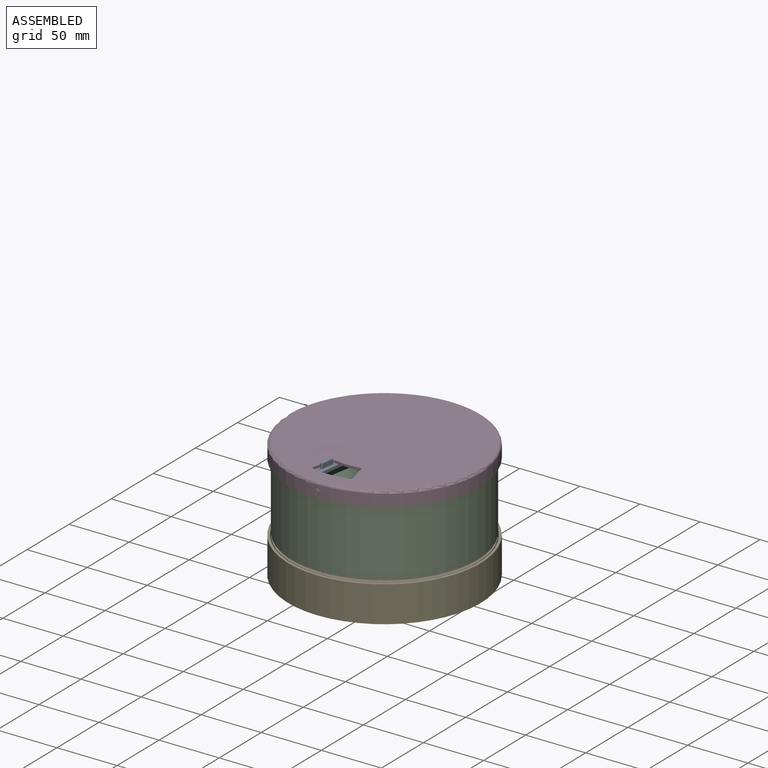
[diagram: assembled view]
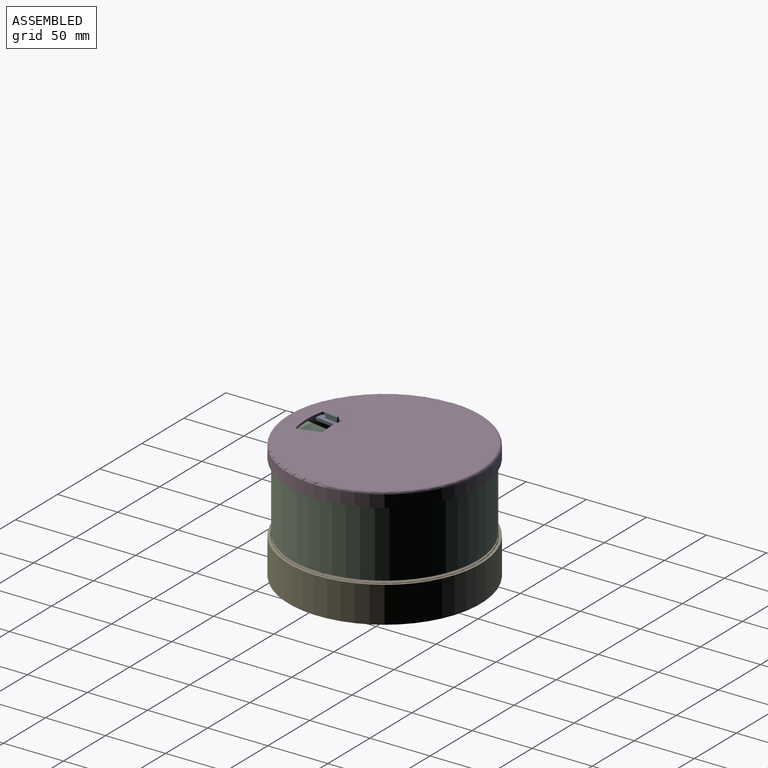
[diagram: assembled view, second angle]
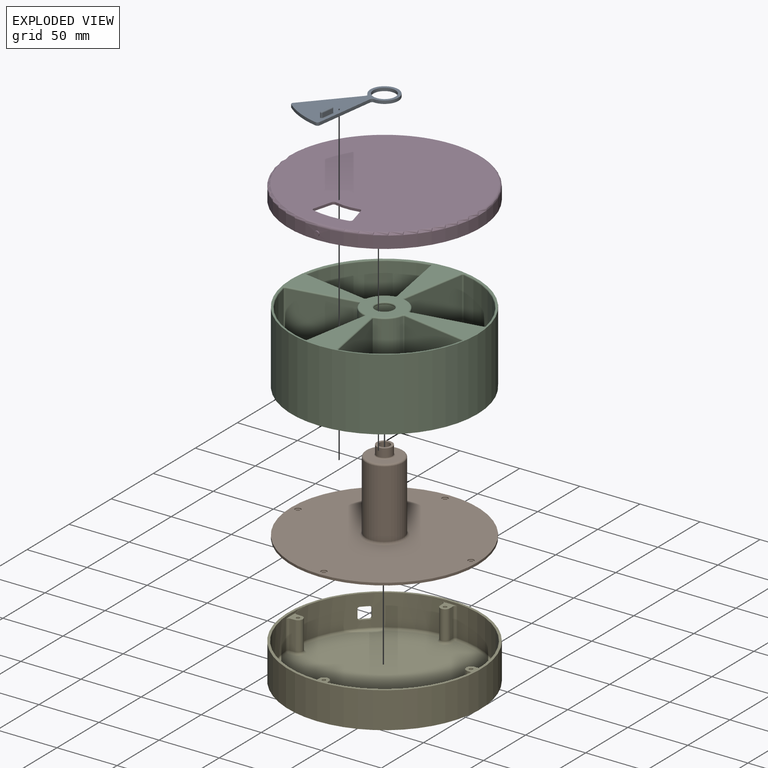
[diagram: exploded view]
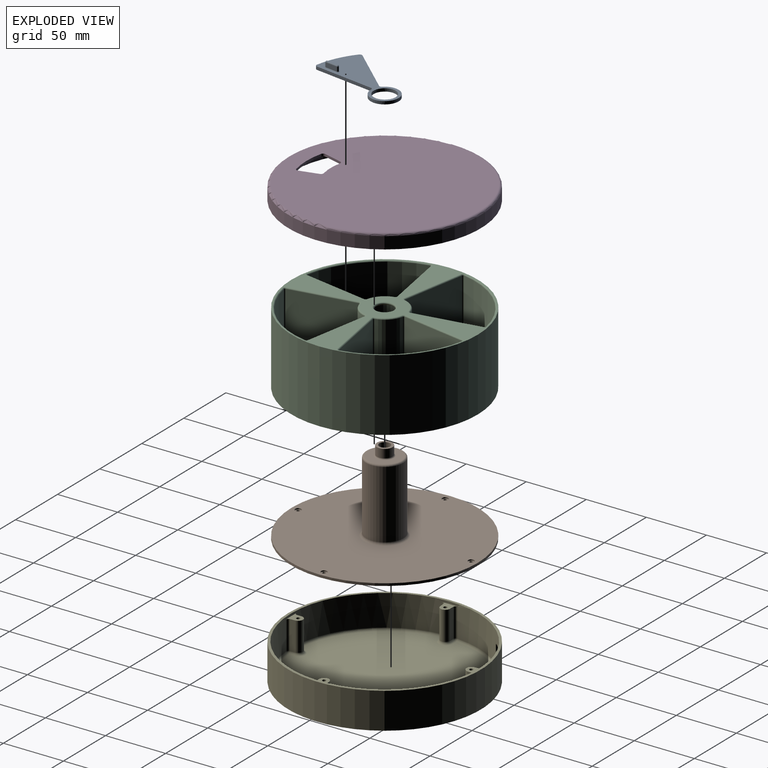
[diagram: exploded view, second angle]
ASSEMBLY  parts=5 mates=4
PART A: 22 faces, bbox 77.7x7.5x36 mm
  f0: torus R=1.5mm, axis (0,1,0), area 2.9mm2, adj f7,f14,f19,f20
  f1: sphere r=1mm, area 3.1mm2, adj f14,f18
  f2: cylinder r=1mm len=3.5mm, axis (0,-1,0), area 11mm2, adj f15,f16,f17,f21
  f3: cylinder r=9.15mm len=18.3mm, axis (0,-1,0), area 143.7mm2, adj f7,f8
  f4: cylinder r=2mm len=2.5mm, axis (0,-1,0), area 7.4mm2, adj f5,f7,f8,f13
  f5: cylinder r=11.65mm len=23.3mm, axis (0,-1,0), area 160.6mm2, adj f4,f7,f8,f12
  f6: cylinder r=2mm len=2.52mm, axis (0,-1,0), area 8.1mm2, adj f7,f8,f10,f11
  f7: plane 77.65x36.02mm, normal (0,1,0), area 1290.5mm2, adj f0,f3,f4,f5,f6,f9,f10,f11
  f8: plane 77.65x36.02mm, normal (0,-1,0), area 1327.6mm2, adj f3,f4,f5,f6,f9,f10,f11,f12
  f9: cylinder r=2mm len=2.52mm, axis (0,-1,0), area 8.1mm2, adj f7,f8,f10,f13
  f10: cylinder r=66mm len=33.02mm, axis (0,-1,0), area 83.4mm2, adj f6,f7,f8,f9
  f11: plane 48.14x14.72mm, normal (-0.29,0,-0.96), area 125.9mm2, adj f6,f7,f8,f12
  f12: cylinder r=2mm len=2.5mm, axis (0,-1,0), area 7.4mm2, adj f5,f7,f8,f11
  f13: plane 48.14x14.72mm, normal (-0.29,0,0.96), area 125.9mm2, adj f4,f7,f8,f9
  f14: cylinder r=1mm len=3.5mm, axis (0,-1,0), area 11mm2, adj f0,f1,f15,f16
  f15: plane 9.56x3.5mm, normal (0.29,0,0.96), area 35mm2, adj f2,f14,f18,f19
  f16: plane 9.56x3.5mm, normal (-0.29,0,-0.96), area 35mm2, adj f2,f14,f18,f20
  f17: sphere r=1mm, area 3.1mm2, adj f2,f18
  f18: cylinder r=1mm len=10.15mm, axis (-0.96,0,0.29), area 31.4mm2, adj f1,f15,f16,f17
  f19: cylinder r=0.5mm len=9.71mm, axis (0.96,0,-0.29), area 7.9mm2, adj f0,f7,f15,f21
  f20: cylinder r=0.5mm len=9.71mm, axis (-0.96,0,0.29), area 7.9mm2, adj f0,f7,f16,f21
  f21: torus R=1.5mm, axis (0,1,0), area 2.9mm2, adj f2,f7,f19,f20
PART B: 28 faces, bbox 155x70x155 mm
  f0: torus R=17.5mm, axis (0,1,0), area 320.3mm2, adj f16,f19
  f1: cylinder r=1.5mm len=3mm, axis (0,1,0), area 9.4mm2, adj f20,f27
  f2: cylinder r=1.5mm len=3mm, axis (0,1,0), area 9.4mm2, adj f20,f26
  f3: cylinder r=1.5mm len=3mm, axis (0,1,0), area 9.4mm2, adj f20,f25
  f4: cylinder r=2.5mm len=5mm, axis (0,1,0), area 15.7mm2, adj f19,f27
  f5: cylinder r=2.5mm len=5mm, axis (0,1,0), area 15.7mm2, adj f19,f26
  f6: cylinder r=2.5mm len=5mm, axis (0,1,0), area 15.7mm2, adj f19,f25
  f7: cylinder r=1.5mm len=3mm, axis (0,1,0), area 9.4mm2, adj f20,f24
  f8: cylinder r=2.5mm len=5mm, axis (0,1,0), area 15.7mm2, adj f19,f24
  f9: torus R=15.5mm, axis (0,1,0), area 280.8mm2, adj f17,f20
  f10: torus R=12mm, axis (0,-1,0), area 191.8mm2, adj f17,f23
  f11: torus R=5.5mm, axis (0,-1,0), area 48mm2, adj f12,f23
  f12: cylinder r=4.5mm len=9mm, axis (0,-1,0), area 254.5mm2, adj f11,f22
  f13: cylinder r=6.5mm len=13mm, axis (0,-1,0), area 285.9mm2, adj f14,f22
  f14: torus R=7.5mm, axis (0,-1,0), area 67.7mm2, adj f13,f21
  f15: torus R=14mm, axis (0,-1,0), area 221.4mm2, adj f16,f21
  f16: cylinder r=15.5mm len=56.5mm, axis (0,-1,0), area 5502.5mm2, adj f0,f15
  f17: cylinder r=13.5mm len=56.5mm, axis (0,-1,0), area 4792.5mm2, adj f9,f10
  f18: cylinder r=77.5mm len=155mm, axis (0,-1,0), area 973.9mm2, adj f19,f20
  f19: plane 155x155mm, normal (0,1,0), area 17828.5mm2, adj f0,f4,f5,f6,f8,f18
  f20: plane 155x155mm, normal (0,-1,0), area 18086.1mm2, adj f1,f2,f3,f7,f9,f18
  f21: plane 28x28mm, normal (0,1,0), area 439mm2, adj f14,f15
  f22: plane 13x13mm, normal (0,1,0), area 69.1mm2, adj f12,f13
  f23: plane 24x24mm, normal (0,-1,0), area 357.4mm2, adj f10,f11
  f24: plane 5x5mm, normal (0,1,0), area 12.6mm2, adj f7,f8
  f25: plane 5x5mm, normal (0,1,0), area 12.6mm2, adj f3,f6
  f26: plane 5x5mm, normal (0,1,0), area 12.6mm2, adj f2,f5
  f27: plane 5x5mm, normal (0,1,0), area 12.6mm2, adj f1,f4
PART C: 108 faces, bbox 164.2x60x164.2 mm
  f0: torus R=8.5mm, axis (0,-1,0), area 155.2mm2, adj f13,f27
  f1: torus R=14.5mm, axis (0,-1,0), area 311.4mm2, adj f11,f27
  f2: torus R=18.5mm, axis (0,1,0), area 340mm2, adj f11,f26
  f3: torus R=2mm, axis (0,1,0), area 3.3mm2, adj f13,f102,f103,f107
  f4: cylinder r=1mm len=56mm, axis (0,-1,0), area 88.7mm2, adj f14,f28,f92,f101
  f5: cylinder r=1mm len=56mm, axis (0,-1,0), area 88.7mm2, adj f23,f29,f82,f88
  f6: torus R=2mm, axis (0,1,0), area 3.3mm2, adj f13,f75,f80,f84
  f7: cylinder r=1mm len=56mm, axis (0,-1,0), area 85.1mm2, adj f22,f31,f64,f69
  f8: torus R=2mm, axis (0,1,0), area 3.4mm2, adj f13,f61,f62,f68
  f9: torus R=2mm, axis (0,1,0), area 3.4mm2, adj f13,f50,f51,f53
  f10: cylinder r=1mm len=56mm, axis (0,-1,0), area 85.1mm2, adj f19,f35,f37,f44
  f11: cylinder r=16.5mm len=54mm, axis (0,-1,0), area 5598.3mm2, adj f1,f2
  f12: cylinder r=77.5mm len=155mm, axis (0,-1,0), area 29216.8mm2, adj f13,f26
  f13: plane 155x155mm, normal (0,1,0), area 4632.3mm2, adj f0,f3,f6,f8,f9,f12,f43,f44
  f14: cylinder r=75.5mm len=60.06mm, axis (0,-1,0), area 5052mm2, adj f4,f90,f93,f97
  f15: cylinder r=75.5mm len=60.06mm, axis (0,-1,0), area 5052mm2, adj f40,f49,f50,f53
  f16: plane 68.82x68.82mm, normal (0,1,0), area 3048.2mm2, adj f90,f94,f95,f96
  f17: plane 68.82x68.82mm, normal (0,1,0), area 3048.2mm2, adj f36,f39,f40,f41
  f18: cylinder r=18.5mm len=56mm, axis (0,-1,0), area 1159.4mm2, adj f95,f103,f104,f107
  f19: cylinder r=18.5mm len=56mm, axis (0,-1,0), area 1159.4mm2, adj f10,f36,f42,f43
  f20: cylinder r=75.5mm len=60.06mm, axis (0,-1,0), area 5052mm2, adj f54,f57,f61,f62
  f21: plane 68.82x68.82mm, normal (0,1,0), area 3048.2mm2, adj f54,f58,f59,f60
  f22: cylinder r=18.5mm len=56mm, axis (0,-1,0), area 1159.4mm2, adj f7,f59,f67,f71
  f23: cylinder r=75.5mm len=60.06mm, axis (0,-1,0), area 5052mm2, adj f5,f77,f85,f89
  f24: plane 68.82x68.82mm, normal (0,1,0), area 3048.2mm2, adj f72,f76,f77,f78
  f25: cylinder r=18.5mm len=56mm, axis (0,-1,0), area 1159.4mm2, adj f72,f75,f79,f80
  f26: plane 155x155mm, normal (0,-1,0), area 17794mm2, adj f2,f12
  f27: plane 29x29mm, normal (0,-1,0), area 433.5mm2, adj f0,f1
  f28: plane 56x54.18mm, normal (-0.98,0,0.17), area 3081.1mm2, adj f4,f96,f104,f105
  f29: plane 56x54.18mm, normal (0.98,0,0.17), area 3081.1mm2, adj f5,f78,f79,f86
  f30: plane 56x54.18mm, normal (-0.17,0,-0.98), area 3081.1mm2, adj f75,f76,f84,f85
  f31: plane 56x54.18mm, normal (-0.17,0,0.98), area 3081.1mm2, adj f7,f57,f58,f66
  f32: plane 56x54.18mm, normal (-0.98,0,-0.17), area 3081.1mm2, adj f41,f42,f50,f51
  f33: plane 56x54.18mm, normal (0.98,0,-0.17), area 3081.1mm2, adj f60,f61,f67,f68
  f34: plane 56x54.18mm, normal (0.17,0,-0.98), area 3081.1mm2, adj f93,f94,f102,f103
  f35: plane 56x54.18mm, normal (0.17,0,0.98), area 3081.1mm2, adj f10,f39,f48,f49
  f36: torus R=19.5mm, axis (0,1,0), area 33.2mm2, adj f17,f19,f37,f38
  f37: sphere r=1mm, area 1.5mm2, adj f10,f36,f39
  f38: sphere r=1mm, area 1.5mm2, adj f36,f41,f42
  f39: cylinder r=1mm len=54.36mm, axis (0.98,0,-0.17), area 86.4mm2, adj f17,f35,f37,f45
  f40: torus R=74.5mm, axis (0,1,0), area 141mm2, adj f15,f17,f45,f46
  f41: cylinder r=1mm len=54.36mm, axis (-0.17,0,0.98), area 86.4mm2, adj f17,f32,f38,f46
  f42: cylinder r=1mm len=56mm, axis (0,-1,0), area 85.1mm2, adj f19,f32,f38,f47
  f43: torus R=17.5mm, axis (0,1,0), area 31.9mm2, adj f13,f19,f44,f47
  f44: torus R=2mm, axis (0,1,0), area 3.3mm2, adj f10,f13,f43,f48
  f45: sphere r=1mm, area 1.6mm2, adj f39,f40,f49
  f46: sphere r=1mm, area 1.6mm2, adj f40,f41,f50
  f47: torus R=2mm, axis (0,1,0), area 3.3mm2, adj f13,f42,f43,f51
  f48: cylinder r=1mm len=54.36mm, axis (-0.98,0,0.17), area 86.4mm2, adj f13,f35,f44,f52
  f49: cylinder r=1mm len=56mm, axis (0,-1,0), area 88.7mm2, adj f15,f35,f45,f52
  f50: cylinder r=1mm len=56mm, axis (0,-1,0), area 88.7mm2, adj f9,f15,f32,f46
  f51: cylinder r=1mm len=54.36mm, axis (0.17,0,-0.98), area 86.4mm2, adj f9,f13,f32,f47
  f52: torus R=2mm, axis (0,1,0), area 3.4mm2, adj f13,f48,f49,f53
  f53: torus R=76.5mm, axis (0,1,0), area 142.4mm2, adj f9,f13,f15,f52
  f54: torus R=74.5mm, axis (0,1,0), area 141mm2, adj f20,f21,f55,f56
  f55: sphere r=1mm, area 1.6mm2, adj f54,f57,f58
  f56: sphere r=1mm, area 1.6mm2, adj f54,f60,f61
  f57: cylinder r=1mm len=56mm, axis (0,-1,0), area 88.7mm2, adj f20,f31,f55,f63
  f58: cylinder r=1mm len=54.36mm, axis (0.98,0,0.17), area 86.4mm2, adj f21,f31,f55,f64
  f59: torus R=19.5mm, axis (0,1,0), area 33.2mm2, adj f21,f22,f64,f65
  f60: cylinder r=1mm len=54.36mm, axis (-0.17,0,-0.98), area 86.4mm2, adj f21,f33,f56,f65
  f61: cylinder r=1mm len=56mm, axis (0,-1,0), area 88.7mm2, adj f8,f20,f33,f56
  f62: torus R=76.5mm, axis (0,1,0), area 142.4mm2, adj f8,f13,f20,f63
  f63: torus R=2mm, axis (0,1,0), area 3.4mm2, adj f13,f57,f62,f66
  f64: sphere r=1mm, area 1.5mm2, adj f7,f58,f59
  f65: sphere r=1mm, area 1.5mm2, adj f59,f60,f67
  f66: cylinder r=1mm len=54.36mm, axis (-0.98,0,-0.17), area 86.4mm2, adj f13,f31,f63,f69
  f67: cylinder r=1mm len=56mm, axis (0,-1,0), area 85.1mm2, adj f22,f33,f65,f70
  f68: cylinder r=1mm len=54.36mm, axis (0.17,0,0.98), area 86.4mm2, adj f8,f13,f33,f70
  f69: torus R=2mm, axis (0,1,0), area 3.3mm2, adj f7,f13,f66,f71
  f70: torus R=2mm, axis (0,1,0), area 3.3mm2, adj f13,f67,f68,f71
  f71: torus R=17.5mm, axis (0,1,0), area 31.9mm2, adj f13,f22,f69,f70
  f72: torus R=19.5mm, axis (0,1,0), area 33.2mm2, adj f24,f25,f73,f74
  f73: sphere r=1mm, area 1.5mm2, adj f72,f75,f76
  f74: sphere r=1mm, area 1.5mm2, adj f72,f78,f79
  f75: cylinder r=1mm len=56mm, axis (0,-1,0), area 85.1mm2, adj f6,f25,f30,f73
  f76: cylinder r=1mm len=54.36mm, axis (-0.98,0,0.17), area 86.4mm2, adj f24,f30,f73,f81
  f77: torus R=74.5mm, axis (0,1,0), area 141mm2, adj f23,f24,f81,f82
  f78: cylinder r=1mm len=54.36mm, axis (0.17,0,-0.98), area 86.4mm2, adj f24,f29,f74,f82
  f79: cylinder r=1mm len=56mm, axis (0,-1,0), area 85.1mm2, adj f25,f29,f74,f83
  f80: torus R=17.5mm, axis (0,1,0), area 31.9mm2, adj f6,f13,f25,f83
  f81: sphere r=1mm, area 1.6mm2, adj f76,f77,f85
  f82: sphere r=1mm, area 1.6mm2, adj f5,f77,f78
  f83: torus R=2mm, axis (0,1,0), area 3.3mm2, adj f13,f79,f80,f86
  f84: cylinder r=1mm len=54.36mm, axis (0.98,0,-0.17), area 86.4mm2, adj f6,f13,f30,f87
  f85: cylinder r=1mm len=56mm, axis (0,-1,0), area 88.7mm2, adj f23,f30,f81,f87
  f86: cylinder r=1mm len=54.36mm, axis (-0.17,0,0.98), area 86.4mm2, adj f13,f29,f83,f88
  f87: torus R=2mm, axis (0,1,0), area 3.4mm2, adj f13,f84,f85,f89
  f88: torus R=2mm, axis (0,1,0), area 3.4mm2, adj f5,f13,f86,f89
  f89: torus R=76.5mm, axis (0,1,0), area 142.4mm2, adj f13,f23,f87,f88
  f90: torus R=74.5mm, axis (0,1,0), area 141mm2, adj f14,f16,f91,f92
  f91: sphere r=1mm, area 1.6mm2, adj f90,f93,f94
  f92: sphere r=1mm, area 1.6mm2, adj f4,f90,f96
  f93: cylinder r=1mm len=56mm, axis (0,-1,0), area 88.7mm2, adj f14,f34,f91,f98
  f94: cylinder r=1mm len=54.36mm, axis (-0.98,0,-0.17), area 86.4mm2, adj f16,f34,f91,f99
  f95: torus R=19.5mm, axis (0,1,0), area 33.2mm2, adj f16,f18,f99,f100
  f96: cylinder r=1mm len=54.36mm, axis (0.17,0,0.98), area 86.4mm2, adj f16,f28,f92,f100
  f97: torus R=76.5mm, axis (0,1,0), area 142.4mm2, adj f13,f14,f98,f101
  f98: torus R=2mm, axis (0,1,0), area 3.4mm2, adj f13,f93,f97,f102
  f99: sphere r=1mm, area 1.5mm2, adj f94,f95,f103
  f100: sphere r=1mm, area 1.5mm2, adj f95,f96,f104
  f101: torus R=2mm, axis (0,1,0), area 3.4mm2, adj f4,f13,f97,f105
  f102: cylinder r=1mm len=54.36mm, axis (0.98,0,0.17), area 86.4mm2, adj f3,f13,f34,f98
  f103: cylinder r=1mm len=56mm, axis (0,-1,0), area 85.1mm2, adj f3,f18,f34,f99
  f104: cylinder r=1mm len=56mm, axis (0,-1,0), area 85.1mm2, adj f18,f28,f100,f106
  f105: cylinder r=1mm len=54.36mm, axis (-0.17,0,-0.98), area 86.4mm2, adj f13,f28,f101,f106
  f106: torus R=2mm, axis (0,1,0), area 3.3mm2, adj f13,f104,f105,f107
  f107: torus R=17.5mm, axis (0,1,0), area 31.9mm2, adj f3,f13,f18,f106
PART D: 29 faces, bbox 173.2x12x173.2 mm
  f0: bspline ~4.05x4mm, area 12.6mm2, adj f8,f20
  f1: cylinder r=2mm len=2.37mm, axis (0,-1,0), area 6.1mm2, adj f9,f11,f16,f17
  f2: cylinder r=2mm len=2.37mm, axis (0,-1,0), area 6.1mm2, adj f9,f11,f15,f16
  f3: torus R=77mm, axis (0,1,0), area 766.2mm2, adj f7,f11
  f4: torus R=78mm, axis (0,1,0), area 1564.8mm2, adj f8,f9
  f5: cylinder r=7mm len=14mm, axis (0,1,0), area 265.3mm2, adj f12,f13,f21,f22,f23,f24,f25,f26
  f6: cylinder r=9mm len=18mm, axis (0,1,0), area 354.4mm2, adj f11,f12,f21,f22,f23,f24,f25,f26
  f7: cylinder r=78mm len=156mm, axis (0,-1,0), area 4410.8mm2, adj f3,f10
  f8: cylinder r=80mm len=160mm, axis (0,-1,0), area 5014mm2, adj f0,f4,f10
  f9: plane 156x156mm, normal (0,1,0), area 18540.9mm2, adj f1,f2,f4,f14,f15,f16,f17,f18
  f10: plane 160x160mm, normal (0,-1,0), area 992.7mm2, adj f7,f8
  f11: plane 154x154mm, normal (0,-1,0), area 17799.5mm2, adj f1,f2,f3,f6,f14,f15,f16,f17
  f12: plane 18x18mm, normal (0,-1,0), area 100.5mm2, adj f5,f6
  f13: plane 14x14mm, normal (0,-1,0), area 153.9mm2, adj f5
  f14: cylinder r=2mm len=2.47mm, axis (0,-1,0), area 6.4mm2, adj f9,f11,f15,f19
  f15: plane 15.47x4.14mm, normal (-0.97,0,0.26), area 32mm2, adj f2,f9,f11,f14
  f16: cylinder r=45mm len=19.57mm, axis (0,-1,0), area 39.5mm2, adj f1,f2,f9,f11
  f17: plane 15.47x4.14mm, normal (0.97,0,0.26), area 32mm2, adj f1,f9,f11,f18
  f18: cylinder r=2mm len=2.47mm, axis (0,-1,0), area 6.4mm2, adj f9,f11,f17,f19
  f19: cylinder r=65mm len=29.64mm, axis (0,-1,0), area 59.8mm2, adj f9,f11,f14,f18
  f20: cylinder r=81mm len=4.05mm, axis (0,-1,0), area 12.7mm2, adj f0
  f21: plane 8x3.26mm, normal (0,1,0), area 16.8mm2, adj f5,f6,f22,f24
  f22: plane 2.5x2.32mm, normal (-1,0,0), area 5.8mm2, adj f5,f6,f21,f23
  f23: plane 8x3.26mm, normal (0,-1,0), area 16.8mm2, adj f5,f6,f22,f24
  f24: plane 2.5x2.32mm, normal (1,0,0), area 5.8mm2, adj f5,f6,f21,f23
  f25: plane 2.5x2.32mm, normal (1,0,0), area 5.8mm2, adj f5,f6,f26,f28
  f26: plane 8x3.26mm, normal (0,-1,0), area 16.8mm2, adj f5,f6,f25,f27
  f27: plane 2.5x2.32mm, normal (-1,0,0), area 5.8mm2, adj f5,f6,f26,f28
  f28: plane 8x3.26mm, normal (0,1,0), area 16.8mm2, adj f5,f6,f25,f27
PART E: 69 faces, bbox 168.3x30x168.3 mm
  f0: cylinder r=1.5mm len=5mm, axis (0,1,0), area 47.1mm2, adj f32,f60
  f1: cylinder r=1.5mm len=5mm, axis (0,1,0), area 47.1mm2, adj f36,f59
  f2: cylinder r=1.5mm len=5mm, axis (0,1,0), area 47.1mm2, adj f39,f58
  f3: torus R=6mm, axis (0,1,0), area 46.6mm2, adj f10,f31,f41,f43
  f4: cylinder r=2mm len=24mm, axis (0,-1,0), area 76.7mm2, adj f9,f30,f32,f42
  f5: cylinder r=2mm len=24mm, axis (0,-1,0), area 79.2mm2, adj f9,f29,f32,f40
  f6: cylinder r=4mm len=24mm, axis (0,-1,0), area 301.6mm2, adj f37,f38,f39,f56
  f7: cylinder r=1.5mm len=5mm, axis (0,1,0), area 47.1mm2, adj f20,f28
  f8: cylinder r=80mm len=160mm, axis (0,-1,0), area 14984.1mm2, adj f15,f16,f61,f62,f63,f64,f65,f66
  f9: cylinder r=78mm len=156mm, axis (0,-1,0), area 11442.3mm2, adj f4,f5,f11,f12,f13,f14,f15,f20
  f10: plane 151.53x151.53mm, normal (0,1,0), area 17729.8mm2, adj f3,f11,f12,f13,f14,f24,f26,f27
  f11: torus R=76mm, axis (0,1,0), area 342.3mm2, adj f9,f10,f25,f52
  f12: torus R=76mm, axis (0,1,0), area 342.3mm2, adj f9,f10,f45,f55
  f13: torus R=76mm, axis (0,1,0), area 342.3mm2, adj f9,f10,f40,f48
  f14: torus R=76mm, axis (0,1,0), area 342.3mm2, adj f9,f10,f22,f42
  f15: plane 160x160mm, normal (0,1,0), area 992.7mm2, adj f8,f9
  f16: plane 160x160mm, normal (0,-1,0), area 20106.2mm2, adj f8
  f17: plane 24x3.76mm, normal (0,0,-1), area 90.3mm2, adj f19,f20,f21,f24
  f18: plane 24x3.86mm, normal (0.06,0,1), area 92.7mm2, adj f19,f20,f23,f27
  f19: cylinder r=4mm len=24mm, axis (0,-1,0), area 301.6mm2, adj f17,f18,f20,f26
  f20: plane 12.53x10mm, normal (0,1,0), area 68.7mm2, adj f7,f9,f17,f18,f19,f21,f23
  f21: cylinder r=2mm len=24mm, axis (0,-1,0), area 79.2mm2, adj f9,f17,f20,f22
  f22: sphere r=2mm, area 6.6mm2, adj f14,f21,f24
  f23: cylinder r=2mm len=24mm, axis (0,-1,0), area 76.7mm2, adj f9,f18,f20,f25
  f24: cylinder r=2mm len=3.76mm, axis (-1,0,0), area 11.8mm2, adj f10,f17,f22,f26
  f25: sphere r=2mm, area 6.4mm2, adj f11,f23,f27
  f26: torus R=6mm, axis (0,1,0), area 46.6mm2, adj f10,f19,f24,f27
  f27: cylinder r=2mm len=3.97mm, axis (1,0,-0.06), area 12.1mm2, adj f10,f18,f25,f26
  f28: plane 3x3mm, normal (0,1,0), area 7.1mm2, adj f7
  f29: plane 24x3.76mm, normal (1,0,0), area 90.3mm2, adj f5,f31,f32,f41
  f30: plane 24x3.86mm, normal (-1,0,0.06), area 92.7mm2, adj f4,f31,f32,f43
  f31: cylinder r=4mm len=24mm, axis (0,-1,0), area 301.6mm2, adj f3,f29,f30,f32
  f32: plane 12.53x10mm, normal (0,1,0), area 68.7mm2, adj f0,f4,f5,f9,f29,f30,f31
  f33: plane 24x3.76mm, normal (0,0,1), area 90.3mm2, adj f35,f36,f44,f47
  f34: plane 24x3.86mm, normal (-0.06,0,-1), area 92.7mm2, adj f35,f36,f46,f50
  f35: cylinder r=4mm len=24mm, axis (0,-1,0), area 301.6mm2, adj f33,f34,f36,f49
  f36: plane 12.53x10mm, normal (0,1,0), area 68.7mm2, adj f1,f9,f33,f34,f35,f44,f46
  f37: plane 24x3.76mm, normal (-1,0,0), area 90.3mm2, adj f6,f39,f51,f54
  f38: plane 24x3.86mm, normal (1,0,-0.06), area 92.7mm2, adj f6,f39,f53,f57
  f39: plane 12.53x10mm, normal (0,1,0), area 68.7mm2, adj f2,f6,f9,f37,f38,f51,f53
  f40: sphere r=2mm, area 6.6mm2, adj f5,f13,f41
  f41: cylinder r=2mm len=3.76mm, axis (0,0,-1), area 11.8mm2, adj f3,f10,f29,f40
  f42: sphere r=2mm, area 6.4mm2, adj f4,f14,f43
  f43: cylinder r=2mm len=3.97mm, axis (0.06,0,1), area 12.1mm2, adj f3,f10,f30,f42
  f44: cylinder r=2mm len=24mm, axis (0,-1,0), area 79.2mm2, adj f9,f33,f36,f45
  f45: sphere r=2mm, area 6.6mm2, adj f12,f44,f47
  f46: cylinder r=2mm len=24mm, axis (0,-1,0), area 76.7mm2, adj f9,f34,f36,f48
  f47: cylinder r=2mm len=3.76mm, axis (1,0,0), area 11.8mm2, adj f10,f33,f45,f49
  f48: sphere r=2mm, area 6.4mm2, adj f13,f46,f50
  f49: torus R=6mm, axis (0,1,0), area 46.6mm2, adj f10,f35,f47,f50
  f50: cylinder r=2mm len=3.97mm, axis (-1,0,0.06), area 12.1mm2, adj f10,f34,f48,f49
  f51: cylinder r=2mm len=24mm, axis (0,-1,0), area 79.2mm2, adj f9,f37,f39,f52
  f52: sphere r=2mm, area 6.6mm2, adj f11,f51,f54
  f53: cylinder r=2mm len=24mm, axis (0,-1,0), area 76.7mm2, adj f9,f38,f39,f55
  f54: cylinder r=2mm len=3.76mm, axis (0,0,1), area 11.8mm2, adj f10,f37,f52,f56
  f55: sphere r=2mm, area 6.4mm2, adj f12,f53,f57
  f56: torus R=6mm, axis (0,1,0), area 46.6mm2, adj f6,f10,f54,f57
  f57: cylinder r=2mm len=3.97mm, axis (-0.06,0,-1), area 12.1mm2, adj f10,f38,f55,f56
  f58: plane 3x3mm, normal (0,1,0), area 7.1mm2, adj f2
  f59: plane 3x3mm, normal (0,1,0), area 7.1mm2, adj f1
  f60: plane 3x3mm, normal (0,1,0), area 7.1mm2, adj f0
  f61: cylinder r=1.5mm len=2.53mm, axis (0.71,0,0.71), area 4.7mm2, adj f8,f9,f62,f68
  f62: plane 7x1.42mm, normal (-0.71,0,0.71), area 14mm2, adj f8,f9,f61,f63
  f63: cylinder r=1.5mm len=2.53mm, axis (0.71,0,0.71), area 4.7mm2, adj f8,f9,f62,f64
  f64: plane 6.37x6.37mm, normal (0,1,0), area 14mm2, adj f8,f9,f63,f65
  f65: cylinder r=1.5mm len=2.53mm, axis (0.71,0,0.71), area 4.7mm2, adj f8,f9,f64,f66
  f66: plane 7x1.42mm, normal (0.71,0,-0.71), area 14mm2, adj f8,f9,f65,f67
  f67: cylinder r=1.5mm len=2.53mm, axis (0.71,0,0.71), area 4.7mm2, adj f8,f9,f66,f68
  f68: plane 6.37x6.37mm, normal (0,-1,0), area 14mm2, adj f8,f9,f61,f67
PLACE A rot(axis=(0.41,-0.64,-0.64),135.3deg) t=(-24.54,10.15,140.85)mm
PLACE B rot(axis=(1,0,0),90deg) t=(-24.54,10.15,73.35)mm
PLACE C rot(axis=(1,0,0),90deg) t=(-24.54,10.15,77.35)mm
PLACE D rot(axis=(1,0,0),90deg) t=(-24.54,10.15,133.35)mm
PLACE E rot(axis=(1,0,0),90deg) t=(-24.54,10.15,45.35)mm fixed
MATE revolute B.f0 <-> D.f3  axis (0,0,-1) through (-24.54,10.15,143.35)mm
MATE fastened C.f0 <-> B.f0  axis (0,0,-1) through (-24.54,10.15,135.35)mm
MATE fastened B.f1 <-> E.f2  axis (0,0,-1) through (-24.54,-61.85,73.35)mm
MATE revolute A.f3 <-> D.f3  axis (0,0,1) through (-24.54,10.15,143.35)mm
